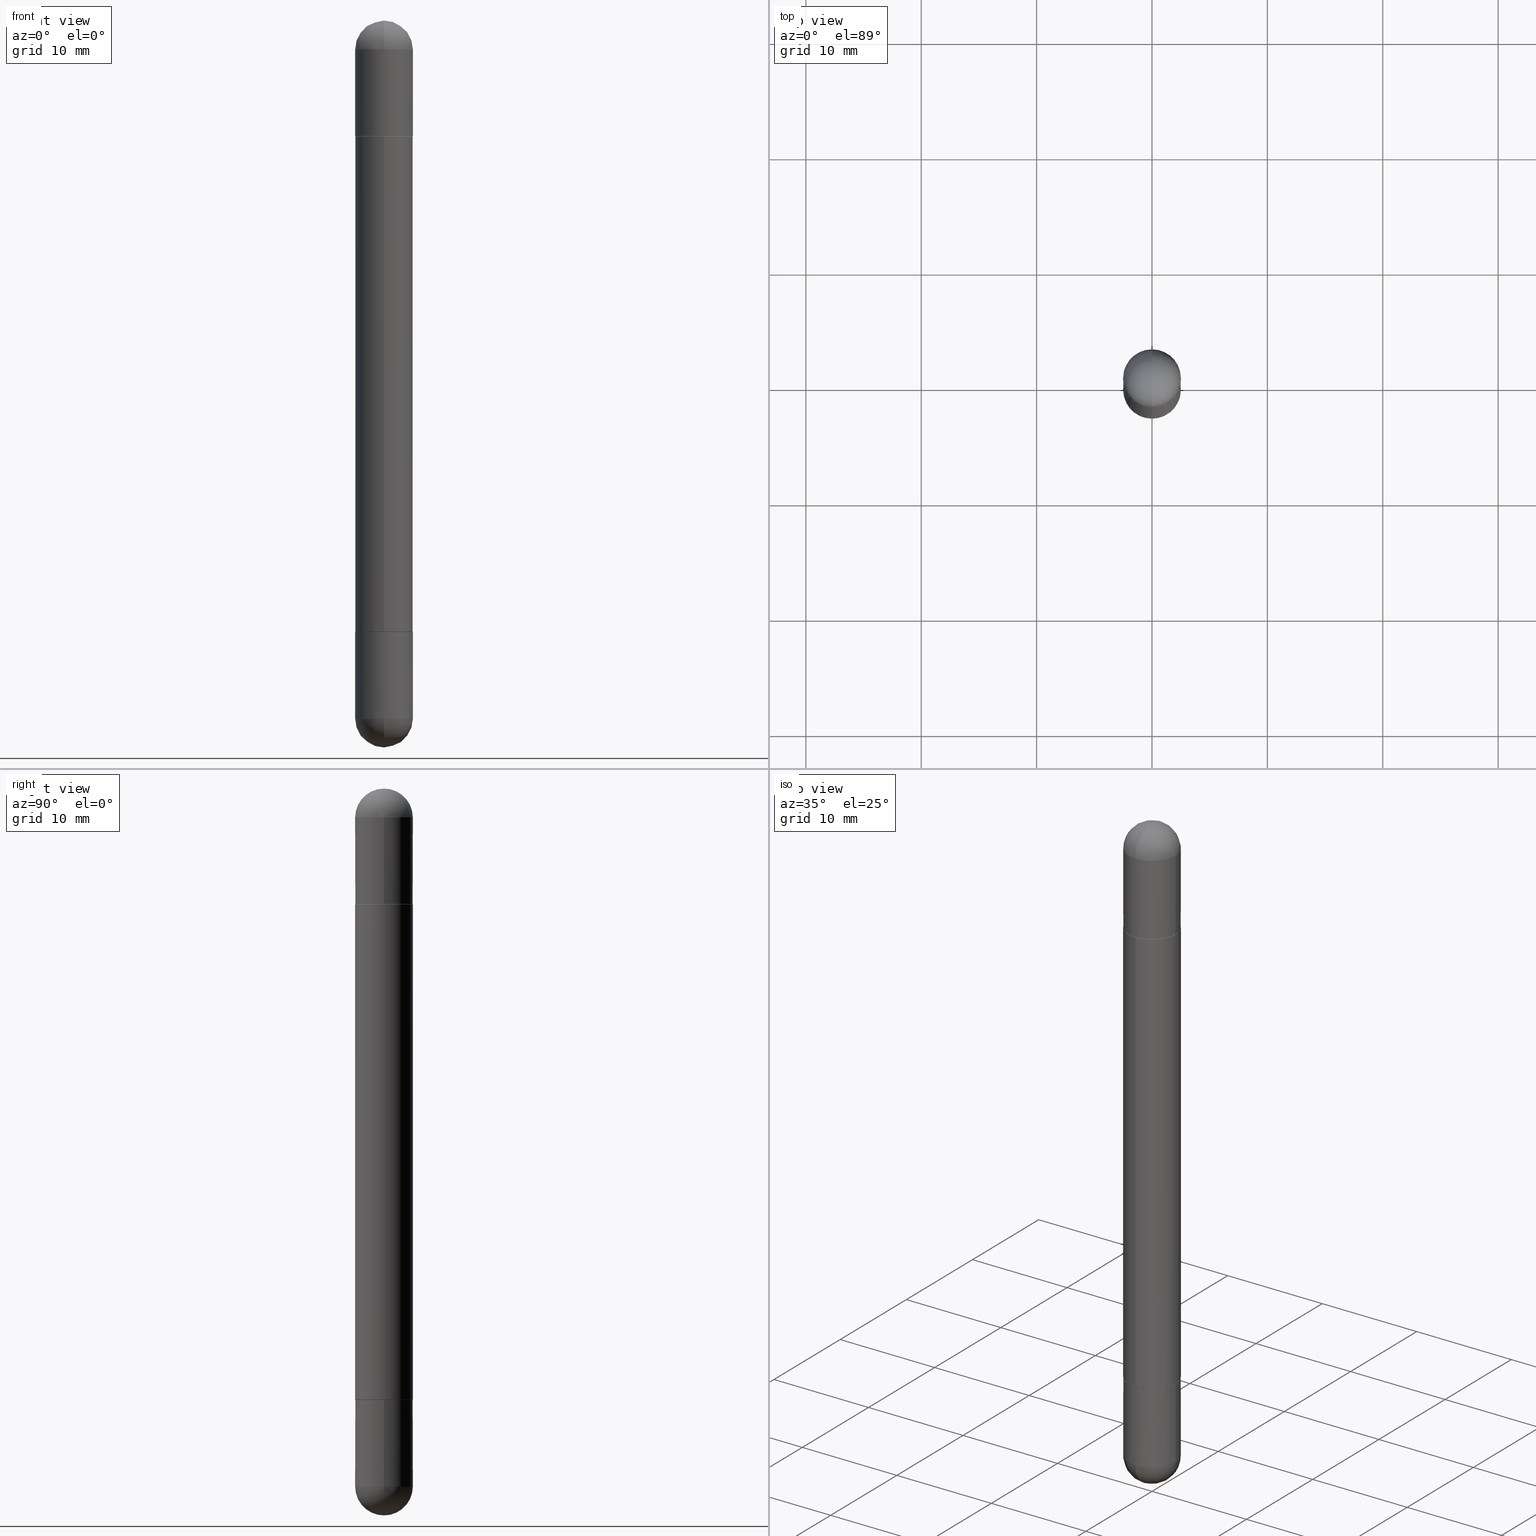
[diagram: canonical four-view strip — front | top / right | iso, engineering-drawing reading convention]
A machine part, canonical four-view strip (front | top / right | iso — engineering-drawing reading convention). The complete STEP part file that produces these views, byte-faithful:
ISO-10303-21;
HEADER;
FILE_DESCRIPTION (( 'STEP AP203' ),
    '1' );
FILE_NAME ('48997.STEP',
    '2024-03-01T12:49:37',
    ( '' ),
    ( '' ),
    'SwSTEP 2.0',
    'SolidWorks 2023',
    '' );
FILE_SCHEMA (( 'CONFIG_CONTROL_DESIGN' ));
ENDSEC;

DATA;
#1 = DIRECTION ( 'NONE',  ( 1.000000000000000000, -6.982962677686273810E-15, 0.000000000000000000 ) ) ;
#2 = DIRECTION ( 'NONE',  ( -6.982962677686265922E-15, -1.000000000000000000, 3.490972175731946571E-15 ) ) ;
#3 = ORIENTED_EDGE ( 'NONE', *, *, #204, .T. ) ;
#4 = AXIS2_PLACEMENT_3D ( 'NONE', #802, #734, #112 ) ;
#5 = LINE ( 'NONE', #442, #557 ) ;
#6 = AXIS2_PLACEMENT_3D ( 'NONE', #487, #69, #309 ) ;
#7 = AXIS2_PLACEMENT_3D ( 'NONE', #519, #580, #702 ) ;
#8 = EDGE_CURVE ( 'NONE', #439, #349, #703, .T. ) ;
#9 = FACE_OUTER_BOUND ( 'NONE', #797, .T. ) ;
#10 = VERTEX_POINT ( 'NONE', #49 ) ;
#11 = PRODUCT_DEFINITION ( 'UNKNOWN', '', #153, #621 ) ;
#12 = PERSON_AND_ORGANIZATION ( #728, #114 ) ;
#13 = SPHERICAL_SURFACE ( 'NONE', #389, 0.09845000000000017626 ) ;
#14 = CARTESIAN_POINT ( 'NONE',  ( 5.103457094730619215E-29, -7.284262541882279801E-15, -0.3936999999999999389 ) ) ;
#15 = ADVANCED_FACE ( 'NONE', ( #302 ), #370, .T. ) ;
#16 = CALENDAR_DATE ( 2024, 1, 3 ) ;
#17 = AXIS2_PLACEMENT_3D ( 'NONE', #585, #144, #512 ) ;
#18 = DIRECTION ( 'NONE',  ( -2.445824352885372142E-29, 3.490972175731946571E-15, -1.000000000000000000 ) ) ;
#19 = AXIS2_PLACEMENT_3D ( 'NONE', #58, #555, #384 ) ;
#20 = VERTEX_POINT ( 'NONE', #109 ) ;
#21 = CARTESIAN_POINT ( 'NONE',  ( 5.103457094730619215E-29, -7.284262541882279801E-15, -0.3936999999999999389 ) ) ;
#22 = SECURITY_CLASSIFICATION_LEVEL ( 'unclassified' ) ;
#23 = CARTESIAN_POINT ( 'NONE',  ( -0.09845000000000000973, 6.754160278806074041E-16, -2.480300000000000171 ) ) ;
#24 = CC_DESIGN_PERSON_AND_ORGANIZATION_ASSIGNMENT ( #89, #503, ( #430 ) ) ;
#25 = FACE_OUTER_BOUND ( 'NONE', #230, .T. ) ;
#26 = VERTEX_POINT ( 'NONE', #550 ) ;
#27 = CARTESIAN_POINT ( 'NONE',  ( 5.103457094730619215E-29, -7.284262541882279801E-15, -0.3936999999999999389 ) ) ;
#28 = ADVANCED_FACE ( 'NONE', ( #603 ), #116, .T. ) ;
#29 = CIRCLE ( 'NONE', #811, 0.09845000000000000973 ) ;
#30 = ORIENTED_EDGE ( 'NONE', *, *, #451, .F. ) ;
#31 = CARTESIAN_POINT ( 'NONE',  ( 5.103457094730619215E-29, -7.284262541882279801E-15, -2.086600000000000232 ) ) ;
#32 = ORIENTED_EDGE ( 'NONE', *, *, #809, .F. ) ;
#33 = CARTESIAN_POINT ( 'NONE',  ( 5.824739876012068780E-29, -8.316184826923546689E-15, -2.381850000000000467 ) ) ;
#34 = ORIENTED_EDGE ( 'NONE', *, *, #700, .F. ) ;
#35 = MANIFOLD_SOLID_BREP ( 'Mirror4[3]', #260 ) ;
#36 = CARTESIAN_POINT ( 'NONE',  ( 6.719857788817732685E-16, 0.09744999999999269524, -0.3936999999999996058 ) ) ;
#37 = LINE ( 'NONE', #657, #295 ) ;
#38 = EDGE_CURVE ( 'NONE', #757, #135, #697, .T. ) ;
#39 = ORIENTED_EDGE ( 'NONE', *, *, #149, .F. ) ;
#40 = ORIENTED_EDGE ( 'NONE', *, *, #336, .T. ) ;
#41 = DIRECTION ( 'NONE',  ( 2.445824352885372423E-29, -3.490972175731946571E-15, 1.000000000000000000 ) ) ;
#42 = DIRECTION ( 'NONE',  ( 4.851104656541418659E-15, 0.7071067811866162955, -0.7071067811864787389 ) ) ;
#43 = ORIENTED_EDGE ( 'NONE', *, *, #709, .T. ) ;
#44 = AXIS2_PLACEMENT_3D ( 'NONE', #271, #394, #277 ) ;
#45 = ORIENTED_EDGE ( 'NONE', *, *, #130, .T. ) ;
#46 = ORIENTED_EDGE ( 'NONE', *, *, #71, .F. ) ;
#47 = DIRECTION ( 'NONE',  ( -6.982962677686266711E-15, -1.000000000000000000, -3.504166230970065993E-15 ) ) ;
#48 = FACE_OUTER_BOUND ( 'NONE', #303, .T. ) ;
#49 = CARTESIAN_POINT ( 'NONE',  ( -6.874726756181635521E-16, -0.09845000000000754536, -0.3947000000000003839 ) ) ;
#50 = ORIENTED_EDGE ( 'NONE', *, *, #749, .F. ) ;
#51 = MANIFOLD_SOLID_BREP ( 'Mirror4[4]', #506 ) ;
#52 = EDGE_LOOP ( 'NONE', ( #505, #364 ) ) ;
#53 = DIRECTION ( 'NONE',  ( 2.445468806185136597E-29, -3.491481338843145583E-15, 1.000000000000000000 ) ) ;
#54 = DIRECTION ( 'NONE',  ( 1.000000000000000000, -6.982962677686266711E-15, 0.000000000000000000 ) ) ;
#55 = ORIENTED_EDGE ( 'NONE', *, *, #552, .T. ) ;
#56 = ADVANCED_FACE ( 'NONE', ( #579 ), #75, .T. ) ;
#57 = ORIENTED_EDGE ( 'NONE', *, *, #240, .T. ) ;
#58 = CARTESIAN_POINT ( 'NONE',  ( 5.493620098098182533E-29, -8.790367195063598563E-15, -2.381850000000000467 ) ) ;
#59 = SPHERICAL_SURFACE ( 'NONE', #692, 0.09845000000000017626 ) ;
#60 = EDGE_CURVE ( 'NONE', #375, #528, #247, .T. ) ;
#61 = ORIENTED_EDGE ( 'NONE', *, *, #261, .F. ) ;
#62 = CIRCLE ( 'NONE', #507, 0.09845000000000000973 ) ;
#63 = EDGE_CURVE ( 'NONE', #10, #118, #183, .T. ) ;
#64 = CIRCLE ( 'NONE', #693, 0.09844999999999999585 ) ;
#65 =( NAMED_UNIT ( * ) PLANE_ANGLE_UNIT ( ) SI_UNIT ( $, .RADIAN. ) );
#66 = LOCAL_TIME ( 7, 49, 37.00000000000000000, #391 ) ;
#67 = CARTESIAN_POINT ( 'NONE',  ( 5.103457094730619215E-29, -7.284262541882279801E-15, -2.086600000000000232 ) ) ;
#68 = DIRECTION ( 'NONE',  ( 4.851104656541418659E-15, 0.7071067811866162955, -0.7071067811864787389 ) ) ;
#69 = DIRECTION ( 'NONE',  ( -2.445824352885372423E-29, 3.490972175731946571E-15, -1.000000000000000000 ) ) ;
#70 = ORIENTED_EDGE ( 'NONE', *, *, #270, .F. ) ;
#71 = EDGE_CURVE ( 'NONE', #757, #466, #739, .T. ) ;
#72 = DIRECTION ( 'NONE',  ( 1.000000000000000000, -6.982962677686266711E-15, 0.000000000000000000 ) ) ;
#73 = DIRECTION ( 'NONE',  ( 1.000000000000000000, -6.982962677686265922E-15, 0.000000000000000000 ) ) ;
#74 = ADVANCED_FACE ( 'NONE', ( #800 ), #558, .T. ) ;
#75 = CONICAL_SURFACE ( 'NONE', #521, 0.09744999999999999496, 0.7853981633975420928 ) ;
#76 = PERSON_AND_ORGANIZATION_ROLE ( 'design_supplier' ) ;
#77 = CIRCLE ( 'NONE', #768, 0.09744999999999999496 ) ;
#78 = DIRECTION ( 'NONE',  ( -2.445468806185136597E-29, 3.491481338843145583E-15, 1.000000000000000000 ) ) ;
#79 = DATE_AND_TIME ( #214, #814 ) ;
#80 = LINE ( 'NONE', #23, #651 ) ;
#81 = ADVANCED_FACE ( 'NONE', ( #239 ), #479, .T. ) ;
#82 = CARTESIAN_POINT ( 'NONE',  ( 5.102715210985907397E-29, -7.285324961630108994E-15, -0.3936999999999999389 ) ) ;
#83 = ORIENTED_EDGE ( 'NONE', *, *, #120, .T. ) ;
#84 = PERSON_AND_ORGANIZATION ( #728, #114 ) ;
#85 = CC_DESIGN_PERSON_AND_ORGANIZATION_ASSIGNMENT ( #84, #766, ( #510 ) ) ;
#86 = CIRCLE ( 'NONE', #720, 0.09845000000000017626 ) ;
#87 = FACE_OUTER_BOUND ( 'NONE', #572, .T. ) ;
#88 = VECTOR ( 'NONE', #299, 39.37007874015748143 ) ;
#89 = PERSON_AND_ORGANIZATION ( #728, #114 ) ;
#90 = PRODUCT_DEFINITION_SHAPE ( 'NONE', 'NONE',  #11 ) ;
#91 = FACE_OUTER_BOUND ( 'NONE', #526, .T. ) ;
#92 = ADVANCED_FACE ( 'NONE', ( #48 ), #323, .T. ) ;
#93 = EDGE_CURVE ( 'NONE', #655, #528, #37, .T. ) ;
#94 = CARTESIAN_POINT ( 'NONE',  ( 5.493620098098182533E-29, -8.790367195063598563E-15, -0.09844999999999987095 ) ) ;
#95 = ORIENTED_EDGE ( 'NONE', *, *, #300, .F. ) ;
#96 = CARTESIAN_POINT ( 'NONE',  ( 5.493620098098182533E-29, -8.790367195063598563E-15, -0.09844999999999987095 ) ) ;
#97 = AXIS2_PLACEMENT_3D ( 'NONE', #416, #598, #54 ) ;
#98 = CARTESIAN_POINT ( 'NONE',  ( 0.000000000000000000, 0.000000000000000000, -2.480300000000000171 ) ) ;
#99 = AXIS2_PLACEMENT_3D ( 'NONE', #388, #499, #2 ) ;
#100 = AXIS2_PLACEMENT_3D ( 'NONE', #293, #159, #235 ) ;
#101 = VERTEX_POINT ( 'NONE', #551 ) ;
#102 = CARTESIAN_POINT ( 'NONE',  ( 5.103457094730619215E-29, -7.284262541882279801E-15, -2.086600000000000232 ) ) ;
#103 = FACE_OUTER_BOUND ( 'NONE', #792, .T. ) ;
#104 = ADVANCED_FACE ( 'NONE', ( #731 ), #670, .T. ) ;
#105 = CARTESIAN_POINT ( 'NONE',  ( -6.874726756181635521E-16, -0.09845000000000754536, -0.3947000000000003839 ) ) ;
#106 = DIRECTION ( 'NONE',  ( 1.000000000000000000, -6.982962677686266711E-15, 4.876176775795935793E-29 ) ) ;
#107 = ORIENTED_EDGE ( 'NONE', *, *, #139, .F. ) ;
#108 = DIRECTION ( 'NONE',  ( -6.982962677686265133E-15, -1.000000000000000000, -5.549716594543950441E-15 ) ) ;
#109 = CARTESIAN_POINT ( 'NONE',  ( 6.959766096770698684E-16, 0.09744999999999269524, -2.086600000000000676 ) ) ;
#110 = DIRECTION ( 'NONE',  ( -6.982962677686266711E-15, -1.000000000000000000, -3.504166230970065993E-15 ) ) ;
#111 = AXIS2_PLACEMENT_3D ( 'NONE', #402, #516, #778 ) ;
#112 = DIRECTION ( 'NONE',  ( 1.000000000000000000, -6.982962677686273810E-15, 0.000000000000000000 ) ) ;
#113 = CIRCLE ( 'NONE', #722, 0.09744999999999999496 ) ;
#114 = ORGANIZATION ( 'UNSPECIFIED', 'UNSPECIFIED', '' ) ;
#115 = CARTESIAN_POINT ( 'NONE',  ( 5.824739876012068780E-29, -8.316184826923546689E-15, -2.381850000000000467 ) ) ;
#116 = CYLINDRICAL_SURFACE ( 'NONE', #218, 0.09845000000000013463 ) ;
#117 = CARTESIAN_POINT ( 'NONE',  ( -6.804897129404755657E-16, -0.09745000000000728080, -2.086600000000000232 ) ) ;
#118 = VERTEX_POINT ( 'NONE', #296 ) ;
#119 = ORIENTED_EDGE ( 'NONE', *, *, #520, .F. ) ;
#120 = EDGE_CURVE ( 'NONE', #528, #375, #704, .T. ) ;
#121 = DIRECTION ( 'NONE',  ( 1.000000000000000000, -6.982962677686265922E-15, 0.000000000000000000 ) ) ;
#122 = APPROVAL ( #217, 'UNSPECIFIED' ) ;
#123 = CARTESIAN_POINT ( 'NONE',  ( 5.103457094730619215E-29, -7.284262541882279801E-15, -0.3936999999999999389 ) ) ;
#124 = DIRECTION ( 'NONE',  ( -2.445468806185136597E-29, 3.491481338843145583E-15, 1.000000000000000000 ) ) ;
#125 = VERTEX_POINT ( 'NONE', #805 ) ;
#126 = AXIS2_PLACEMENT_3D ( 'NONE', #738, #301, #106 ) ;
#127 = AXIS2_PLACEMENT_3D ( 'NONE', #408, #647, #474 ) ;
#128 = DIRECTION ( 'NONE',  ( -6.982962677686265922E-15, -1.000000000000000000, -3.468572871589965081E-15 ) ) ;
#129 = DIRECTION ( 'NONE',  ( 6.982962677686265922E-15, 1.000000000000000000, -2.774858297271973643E-15 ) ) ;
#130 = EDGE_CURVE ( 'NONE', #787, #375, #182, .T. ) ;
#131 = PLANE ( 'NONE',  #221 ) ;
#132 = DIRECTION ( 'NONE',  ( -2.445468806185136597E-29, 3.491481338843145583E-15, 1.000000000000000000 ) ) ;
#133 = DIRECTION ( 'NONE',  ( -1.000000000000000000, 0.000000000000000000, 0.000000000000000000 ) ) ;
#134 = CARTESIAN_POINT ( 'NONE',  ( 5.102715210985907397E-29, -7.285324961630108994E-15, -0.3936999999999999389 ) ) ;
#135 = VERTEX_POINT ( 'NONE', #291 ) ;
#136 = CLOSED_SHELL ( 'NONE', ( #28, #155, #395, #449, #485, #229 ) ) ;
#137 = DATE_AND_TIME ( #694, #209 ) ;
#138 = CIRCLE ( 'NONE', #494, 0.09845000000000000973 ) ;
#139 = EDGE_CURVE ( 'NONE', #125, #787, #413, .T. ) ;
#140 = AXIS2_PLACEMENT_3D ( 'NONE', #196, #562, #128 ) ;
#141 = DIRECTION ( 'NONE',  ( -1.000000000000000000, 6.982962677686265922E-15, 4.883557194083112340E-29 ) ) ;
#142 = ORIENTED_EDGE ( 'NONE', *, *, #193, .T. ) ;
#143 = DATE_AND_TIME ( #772, #630 ) ;
#144 = DIRECTION ( 'NONE',  ( 1.000000000000000000, -6.982962677686265922E-15, -4.883557194083112901E-29 ) ) ;
#145 = ORIENTED_EDGE ( 'NONE', *, *, #8, .F. ) ;
#146 = DIRECTION ( 'NONE',  ( -2.445824352885372423E-29, 3.490972175731946571E-15, 1.000000000000000000 ) ) ;
#147 = EDGE_LOOP ( 'NONE', ( #39, #586, #335, #405, #495 ) ) ;
#148 = CLOSED_SHELL ( 'NONE', ( #174, #224, #312, #517, #104 ) ) ;
#149 = EDGE_CURVE ( 'NONE', #439, #744, #483, .T. ) ;
#150 = CIRCLE ( 'NONE', #556, 0.09844999999999999585 ) ;
#151 = CARTESIAN_POINT ( 'NONE',  ( 5.103457094730619215E-29, -7.284262541882279801E-15, -0.3936999999999999389 ) ) ;
#152 = VECTOR ( 'NONE', #382, 39.37007874015748143 ) ;
#153 = PRODUCT_DEFINITION_FORMATION_WITH_SPECIFIED_SOURCE ( 'ANY', '', #430, .NOT_KNOWN. ) ;
#154 = EDGE_LOOP ( 'NONE', ( #172, #431, #242, #95 ) ) ;
#155 = ADVANCED_FACE ( 'NONE', ( #539 ), #262, .T. ) ;
#156 = APPLICATION_PROTOCOL_DEFINITION ( 'international standard', 'config_control_design', 1994, #326 ) ;
#157 = PLANE ( 'NONE',  #111 ) ;
#158 = DIRECTION ( 'NONE',  ( -6.982962677686265922E-15, -1.000000000000000000, 2.774858297271972065E-15 ) ) ;
#159 = DIRECTION ( 'NONE',  ( 1.000000000000000000, -6.860497997771530774E-15, -4.840798879624142912E-29 ) ) ;
#160 = ORIENTED_EDGE ( 'NONE', *, *, #809, .T. ) ;
#161 = ORIENTED_EDGE ( 'NONE', *, *, #186, .F. ) ;
#162 = CARTESIAN_POINT ( 'NONE',  ( 6.924238959982684768E-16, 0.09744999999999269524, -2.086600000000000676 ) ) ;
#163 = ADVANCED_FACE ( 'NONE', ( #170 ), #801, .T. ) ;
#164 = DIRECTION ( 'NONE',  ( -2.445468806185136597E-29, 3.491481338843145583E-15, -1.000000000000000000 ) ) ;
#165 = AXIS2_PLACEMENT_3D ( 'NONE', #571, #428, #129 ) ;
#166 = AXIS2_PLACEMENT_3D ( 'NONE', #656, #53, #287 ) ;
#167 = DIRECTION ( 'NONE',  ( -2.445824352885372423E-29, 3.490972175731946571E-15, 1.000000000000000000 ) ) ;
#168 = ORIENTED_EDGE ( 'NONE', *, *, #8, .T. ) ;
#169 = CARTESIAN_POINT ( 'NONE',  ( -6.804897129404755657E-16, -0.09745000000000728080, -0.3937000000000002720 ) ) ;
#170 = FACE_OUTER_BOUND ( 'NONE', #592, .T. ) ;
#171 = ORIENTED_EDGE ( 'NONE', *, *, #336, .F. ) ;
#172 = ORIENTED_EDGE ( 'NONE', *, *, #818, .F. ) ;
#173 = ORIENTED_EDGE ( 'NONE', *, *, #469, .F. ) ;
#174 = ADVANCED_FACE ( 'NONE', ( #371 ), #475, .T. ) ;
#175 = ORIENTED_EDGE ( 'NONE', *, *, #773, .T. ) ;
#176 = DIRECTION ( 'NONE',  ( 6.860497997771531562E-15, 1.000000000000000000, 0.000000000000000000 ) ) ;
#177 = DIRECTION ( 'NONE',  ( -2.445468806185136597E-29, 3.491481338843145583E-15, 1.000000000000000000 ) ) ;
#178 = EDGE_LOOP ( 'NONE', ( #711, #222, #758, #179 ) ) ;
#179 = ORIENTED_EDGE ( 'NONE', *, *, #459, .T. ) ;
#180 = CARTESIAN_POINT ( 'NONE',  ( -6.874726756181636507E-16, -0.09845000000000751761, -2.085599999999999898 ) ) ;
#181 = DIRECTION ( 'NONE',  ( 1.000000000000000000, -6.982962677686266711E-15, 0.000000000000000000 ) ) ;
#182 = LINE ( 'NONE', #228, #219 ) ;
#183 = CIRCLE ( 'NONE', #626, 0.09845000000000024565 ) ;
#184 = CIRCLE ( 'NONE', #275, 0.09845000000000017626 ) ;
#185 = ORIENTED_EDGE ( 'NONE', *, *, #93, .T. ) ;
#186 = EDGE_CURVE ( 'NONE', #803, #547, #184, .T. ) ;
#187 = DIRECTION ( 'NONE',  ( -6.982962677686265922E-15, -1.000000000000000000, -3.490972175731946571E-15 ) ) ;
#188 = DIRECTION ( 'NONE',  ( -2.445468806185136877E-29, 3.491481338843145188E-15, 1.000000000000000000 ) ) ;
#189 = EDGE_LOOP ( 'NONE', ( #480, #3, #171, #372 ) ) ;
#190 = DIRECTION ( 'NONE',  ( -1.000000000000000000, 6.982962677686265922E-15, 4.876176775795935793E-29 ) ) ;
#191 = FACE_OUTER_BOUND ( 'NONE', #619, .T. ) ;
#192 = CARTESIAN_POINT ( 'NONE',  ( 5.738586058125595532E-29, -9.128075209003904434E-15, 3.073328992872296367E-16 ) ) ;
#193 = EDGE_CURVE ( 'NONE', #705, #528, #288, .T. ) ;
#194 = DIRECTION ( 'NONE',  ( 6.982962677686265922E-15, 1.000000000000000000, 3.468572871589967054E-15 ) ) ;
#195 = AXIS2_PLACEMENT_3D ( 'NONE', #14, #584, #208 ) ;
#196 = CARTESIAN_POINT ( 'NONE',  ( 5.101011270377733069E-29, -7.280771569706549945E-15, -0.3947000000000000508 ) ) ;
#197 = CARTESIAN_POINT ( 'NONE',  ( 0.09845000000000000973, -8.488227569895042768E-15, -0.09844999999999987095 ) ) ;
#198 = ORIENTED_EDGE ( 'NONE', *, *, #591, .F. ) ;
#199 = EDGE_CURVE ( 'NONE', #658, #348, #62, .T. ) ;
#200 = CARTESIAN_POINT ( 'NONE',  ( 3.033189071230795029E-29, -4.329329143733974331E-15, -1.240150000000000086 ) ) ;
#201 = DIRECTION ( 'NONE',  ( 1.000000000000000000, -6.982962677686273810E-15, 0.000000000000000000 ) ) ;
#202 = APPROVAL_DATE_TIME ( #79, #243 ) ;
#203 = DIRECTION ( 'NONE',  ( 1.000000000000000000, -6.982962677686273810E-15, 0.000000000000000000 ) ) ;
#204 = EDGE_CURVE ( 'NONE', #118, #650, #794, .T. ) ;
#205 = APPLICATION_PROTOCOL_DEFINITION ( 'international standard', 'config_control_design', 1994, #708 ) ;
#206 = AXIS2_PLACEMENT_3D ( 'NONE', #67, #681, #322 ) ;
#207 = CONICAL_SURFACE ( 'NONE', #195, 0.09744999999999999496, 0.7853981633975420928 ) ;
#208 = DIRECTION ( 'NONE',  ( -6.982962677686266711E-15, -1.000000000000000000, -3.504166230970065993E-15 ) ) ;
#209 = LOCAL_TIME ( 7, 49, 37.00000000000000000, #518 ) ;
#210 = ORIENTED_EDGE ( 'NONE', *, *, #459, .F. ) ;
#211 = CC_DESIGN_PERSON_AND_ORGANIZATION_ASSIGNMENT ( #344, #500, ( #153 ) ) ;
#212 = CARTESIAN_POINT ( 'NONE',  ( 6.874726756182700483E-16, 0.09844999999999154427, -0.09844999999999953788 ) ) ;
#213 = ORIENTED_EDGE ( 'NONE', *, *, #93, .F. ) ;
#214 = CALENDAR_DATE ( 2024, 1, 3 ) ;
#215 = CARTESIAN_POINT ( 'NONE',  ( 5.103457094730619215E-29, -7.284262541882279801E-15, -0.3936999999999999389 ) ) ;
#216 = ADVANCED_FACE ( 'NONE', ( #103 ), #59, .T. ) ;
#217 = APPROVAL_STATUS ( 'not_yet_approved' ) ;
#218 = AXIS2_PLACEMENT_3D ( 'NONE', #245, #581, #396 ) ;
#219 = VECTOR ( 'NONE', #360, 39.37007874015748143 ) ;
#220 = LINE ( 'NONE', #695, #455 ) ;
#221 = AXIS2_PLACEMENT_3D ( 'NONE', #123, #304, #187 ) ;
#222 = ORIENTED_EDGE ( 'NONE', *, *, #417, .T. ) ;
#223 = CARTESIAN_POINT ( 'NONE',  ( 6.874726756182700483E-16, 0.09844999999999154427, -0.09844999999999953788 ) ) ;
#224 = ADVANCED_FACE ( 'NONE', ( #383 ), #328, .T. ) ;
#225 = ORIENTED_EDGE ( 'NONE', *, *, #786, .T. ) ;
#226 = FACE_OUTER_BOUND ( 'NONE', #542, .T. ) ;
#227 = ORIENTED_EDGE ( 'NONE', *, *, #784, .F. ) ;
#228 = CARTESIAN_POINT ( 'NONE',  ( 6.754160278806080944E-16, 0.09845000000000013463, -2.480299999999999727 ) ) ;
#229 = ADVANCED_FACE ( 'NONE', ( #191 ), #685, .T. ) ;
#230 = EDGE_LOOP ( 'NONE', ( #729, #55, #816, #471 ) ) ;
#231 = PLANE ( 'NONE',  #569 ) ;
#232 = AXIS2_PLACEMENT_3D ( 'NONE', #774, #397, #404 ) ;
#233 = DIRECTION ( 'NONE',  ( -2.445824352885372423E-29, 3.490972175731946571E-15, -1.000000000000000000 ) ) ;
#234 =( GEOMETRIC_REPRESENTATION_CONTEXT ( 3 ) GLOBAL_UNCERTAINTY_ASSIGNED_CONTEXT ( ( #433 ) ) GLOBAL_UNIT_ASSIGNED_CONTEXT ( ( #252, #65, #255 ) ) REPRESENTATION_CONTEXT ( 'NONE', 'WORKASPACE' ) );
#235 = DIRECTION ( 'NONE',  ( 6.860497997771531562E-15, 1.000000000000000000, 0.000000000000000000 ) ) ;
#236 = DIRECTION ( 'NONE',  ( 1.000000000000000000, -6.982962677686266711E-15, 0.000000000000000000 ) ) ;
#237 = FACE_OUTER_BOUND ( 'NONE', #543, .T. ) ;
#238 = DIRECTION ( 'NONE',  ( -2.445468806185136597E-29, 3.491481338843145583E-15, -1.000000000000000000 ) ) ;
#239 = FACE_OUTER_BOUND ( 'NONE', #147, .T. ) ;
#240 = EDGE_CURVE ( 'NONE', #491, #658, #680, .T. ) ;
#241 = ORIENTED_EDGE ( 'NONE', *, *, #583, .F. ) ;
#242 = ORIENTED_EDGE ( 'NONE', *, *, #618, .F. ) ;
#243 = APPROVAL ( #393, 'UNSPECIFIED' ) ;
#244 = DIRECTION ( 'NONE',  ( 1.000000000000000000, -6.982962677686265922E-15, -4.883557194083112901E-29 ) ) ;
#245 = CARTESIAN_POINT ( 'NONE',  ( 0.000000000000000000, 0.000000000000000000, -2.480300000000000171 ) ) ;
#246 = CARTESIAN_POINT ( 'NONE',  ( 5.493620098098182533E-29, -8.790367195063598563E-15, -0.09844999999999987095 ) ) ;
#247 = CIRCLE ( 'NONE', #421, 0.09845000000000024565 ) ;
#248 = AXIS2_PLACEMENT_3D ( 'NONE', #305, #354, #808 ) ;
#249 = AXIS2_PLACEMENT_3D ( 'NONE', #31, #527, #788 ) ;
#250 = ORIENTED_EDGE ( 'NONE', *, *, #149, .T. ) ;
#251 = VERTEX_POINT ( 'NONE', #376 ) ;
#252 =( CONVERSION_BASED_UNIT ( 'INCH', #308 ) LENGTH_UNIT ( ) NAMED_UNIT ( #307 ) );
#253 = DIRECTION ( 'NONE',  ( 2.445824352885372423E-29, -3.490972175731946571E-15, 1.000000000000000000 ) ) ;
#254 = ADVANCED_FACE ( 'NONE', ( #9 ), #266, .T. ) ;
#255 =( NAMED_UNIT ( * ) SI_UNIT ( $, .STERADIAN. ) SOLID_ANGLE_UNIT ( ) );
#256 = ORIENTED_EDGE ( 'NONE', *, *, #130, .F. ) ;
#257 = CARTESIAN_POINT ( 'NONE',  ( 5.102715210985907397E-29, -7.285324961630108994E-15, -2.086600000000000232 ) ) ;
#258 = DIRECTION ( 'NONE',  ( -2.445468806185136597E-29, 3.491481338843145583E-15, 1.000000000000000000 ) ) ;
#259 = EDGE_LOOP ( 'NONE', ( #769, #362 ) ) ;
#260 = CLOSED_SHELL ( 'NONE', ( #15, #752, #74, #676, #81 ) ) ;
#261 = EDGE_CURVE ( 'NONE', #658, #544, #563, .T. ) ;
#262 = CONICAL_SURFACE ( 'NONE', #795, 0.09744999999999999496, 0.7853981633975420928 ) ;
#263 = EDGE_LOOP ( 'NONE', ( #640, #678 ) ) ;
#264 = CIRCLE ( 'NONE', #524, 0.09845000000000017626 ) ;
#265 = SPHERICAL_SURFACE ( 'NONE', #378, 0.09845000000000017626 ) ;
#266 = CYLINDRICAL_SURFACE ( 'NONE', #467, 0.09845000000000013463 ) ;
#267 = ORIENTED_EDGE ( 'NONE', *, *, #63, .T. ) ;
#268 = COORDINATED_UNIVERSAL_TIME_OFFSET ( 5, 0, .BEHIND. ) ;
#269 = DIRECTION ( 'NONE',  ( -1.000000000000000000, 6.982962677686265922E-15, -4.883557194083112901E-29 ) ) ;
#270 = EDGE_CURVE ( 'NONE', #298, #544, #377, .T. ) ;
#271 = CARTESIAN_POINT ( 'NONE',  ( 5.101011270377733069E-29, -7.280771569706549945E-15, -0.3947000000000000508 ) ) ;
#272 = ORIENTED_EDGE ( 'NONE', *, *, #715, .T. ) ;
#273 = AXIS2_PLACEMENT_3D ( 'NONE', #134, #315, #504 ) ;
#274 = DATE_AND_TIME ( #636, #66 ) ;
#275 = AXIS2_PLACEMENT_3D ( 'NONE', #590, #595, #605 ) ;
#276 = CIRCLE ( 'NONE', #390, 0.09744999999999999496 ) ;
#277 = DIRECTION ( 'NONE',  ( -6.982962677686265922E-15, -1.000000000000000000, -3.468572871589965081E-15 ) ) ;
#278 = ADVANCED_FACE ( 'NONE', ( #374 ), #438, .F. ) ;
#279 = SPHERICAL_SURFACE ( 'NONE', #17, 0.09845000000000017626 ) ;
#280 = APPROVAL_STATUS ( 'not_yet_approved' ) ;
#281 = PLANE ( 'NONE',  #7 ) ;
#282 = AXIS2_PLACEMENT_3D ( 'NONE', #493, #253, #677 ) ;
#283 = CARTESIAN_POINT ( 'NONE',  ( 5.102715210985907397E-29, -7.285324961630108994E-15, -0.3936999999999999389 ) ) ;
#284 = AXIS2_PLACEMENT_3D ( 'NONE', #96, #463, #176 ) ;
#285 = CC_DESIGN_APPROVAL ( #646, ( #11 ) ) ;
#286 = ORIENTED_EDGE ( 'NONE', *, *, #492, .F. ) ;
#287 = DIRECTION ( 'NONE',  ( 1.000000000000000000, -6.982962677686273810E-15, 0.000000000000000000 ) ) ;
#288 = LINE ( 'NONE', #117, #482 ) ;
#289 = VERTEX_POINT ( 'NONE', #501 ) ;
#290 = FACE_OUTER_BOUND ( 'NONE', #306, .T. ) ;
#291 = CARTESIAN_POINT ( 'NONE',  ( 0.09844999999999999585, -7.972797637248321554E-15, -0.3936999999999999389 ) ) ;
#292 = ORIENTED_EDGE ( 'NONE', *, *, #60, .T. ) ;
#293 = CARTESIAN_POINT ( 'NONE',  ( 5.493620098098182533E-29, -8.790367195063598563E-15, -0.09844999999999987095 ) ) ;
#294 = DIRECTION ( 'NONE',  ( 1.000000000000000000, -6.982962677686273810E-15, 0.000000000000000000 ) ) ;
#295 = VECTOR ( 'NONE', #470, 39.37007874015748143 ) ;
#296 = CARTESIAN_POINT ( 'NONE',  ( 6.754160278806600606E-16, 0.09844999999999295981, -0.3946999999999996622 ) ) ;
#297 = AXIS2_PLACEMENT_3D ( 'NONE', #151, #468, #785 ) ;
#298 = VERTEX_POINT ( 'NONE', #385 ) ;
#299 = DIRECTION ( 'NONE',  ( -2.445824352885372423E-29, 3.490972175731946571E-15, -1.000000000000000000 ) ) ;
#300 = EDGE_CURVE ( 'NONE', #348, #573, #138, .T. ) ;
#301 = DIRECTION ( 'NONE',  ( -2.445468806185136597E-29, 3.491481338843145583E-15, 1.000000000000000000 ) ) ;
#302 = FACE_OUTER_BOUND ( 'NONE', #529, .T. ) ;
#303 = EDGE_LOOP ( 'NONE', ( #107, #34, #652, #644 ) ) ;
#304 = DIRECTION ( 'NONE',  ( -2.445824352885372142E-29, 3.490972175731946571E-15, -1.000000000000000000 ) ) ;
#305 = CARTESIAN_POINT ( 'NONE',  ( 5.101011270377733069E-29, -7.280771569706549945E-15, -2.085600000000000342 ) ) ;
#306 = EDGE_LOOP ( 'NONE', ( #286, #45, #292, #213 ) ) ;
#307 = DIMENSIONAL_EXPONENTS ( 1.000000000000000000, 0.000000000000000000, 0.000000000000000000, 0.000000000000000000, 0.000000000000000000, 0.000000000000000000, 0.000000000000000000 ) ;
#308 = LENGTH_MEASURE_WITH_UNIT ( LENGTH_MEASURE( 0.02539999999999999897 ), #673 );
#309 = DIRECTION ( 'NONE',  ( -6.982962677686265133E-15, -1.000000000000000000, -5.549716594543950441E-15 ) ) ;
#310 = CLOSED_SHELL ( 'NONE', ( #363, #608, #56, #799, #92, #254, #732, #278 ) ) ;
#311 = CIRCLE ( 'NONE', #273, 0.09844999999999999585 ) ;
#312 = ADVANCED_FACE ( 'NONE', ( #443 ), #13, .T. ) ;
#313 = CIRCLE ( 'NONE', #783, 0.09845000000000000973 ) ;
#314 = ORIENTED_EDGE ( 'NONE', *, *, #186, .T. ) ;
#315 = DIRECTION ( 'NONE',  ( 2.445468806185136597E-29, -3.491481338843145583E-15, 1.000000000000000000 ) ) ;
#316 = ORIENTED_EDGE ( 'NONE', *, *, #520, .T. ) ;
#317 = ORIENTED_EDGE ( 'NONE', *, *, #641, .F. ) ;
#318 = LINE ( 'NONE', #753, #152 ) ;
#319 = DIRECTION ( 'NONE',  ( -2.445824352885372423E-29, 3.490972175731946571E-15, -1.000000000000000000 ) ) ;
#320 = EDGE_CURVE ( 'NONE', #655, #787, #587, .T. ) ;
#321 = FACE_OUTER_BOUND ( 'NONE', #532, .T. ) ;
#322 = DIRECTION ( 'NONE',  ( -6.982962677686266711E-15, -1.000000000000000000, 2.803332984776052637E-15 ) ) ;
#323 = CONICAL_SURFACE ( 'NONE', #398, 0.09744999999999999496, 0.7853981633975420928 ) ;
#324 = CIRCLE ( 'NONE', #400, 0.09744999999999999496 ) ;
#325 = APPROVAL_DATE_TIME ( #448, #646 ) ;
#326 = APPLICATION_CONTEXT ( 'configuration controlled 3d designs of mechanical parts and assemblies' ) ;
#327 = EDGE_CURVE ( 'NONE', #544, #298, #150, .T. ) ;
#328 = SPHERICAL_SURFACE ( 'NONE', #165, 0.09845000000000017626 ) ;
#329 = ORIENTED_EDGE ( 'NONE', *, *, #618, .T. ) ;
#330 = MANIFOLD_SOLID_BREP ( 'Body-Move/Copy2[1]', #148 ) ;
#331 = DIRECTION ( 'NONE',  ( -6.982962677686266711E-15, -1.000000000000000000, -3.504166230970065993E-15 ) ) ;
#332 = MANIFOLD_SOLID_BREP ( 'Mirror4[1]', #136 ) ;
#333 = DIRECTION ( 'NONE',  ( 2.445468806185136597E-29, -3.491481338843145583E-15, 1.000000000000000000 ) ) ;
#334 = CARTESIAN_POINT ( 'NONE',  ( 5.824739876012068780E-29, -8.316184826923546689E-15, -0.09844999999999987095 ) ) ;
#336 = EDGE_CURVE ( 'NONE', #343, #650, #615, .T. ) ;
#335 = ORIENTED_EDGE ( 'NONE', *, *, #813, .F. ) ;
#337 = AXIS2_PLACEMENT_3D ( 'NONE', #710, #146, #577 ) ;
#338 = DIRECTION ( 'NONE',  ( -2.445468806185136877E-29, 3.491481338843145188E-15, -1.000000000000000000 ) ) ;
#339 = PERSON_AND_ORGANIZATION ( #728, #114 ) ;
#340 = AXIS2_PLACEMENT_3D ( 'NONE', #115, #369, #460 ) ;
#341 = MANIFOLD_SOLID_BREP ( 'Combine1', #310 ) ;
#342 = CARTESIAN_POINT ( 'NONE',  ( -6.995293233557624958E-16, -0.09845000000000865559, -2.381850000000000023 ) ) ;
#343 = VERTEX_POINT ( 'NONE', #616 ) ;
#344 = PERSON_AND_ORGANIZATION ( #728, #114 ) ;
#345 = CARTESIAN_POINT ( 'NONE',  ( -0.09844999999999999585, -7.125338866396220043E-15, -0.3936999999999999389 ) ) ;
#346 = EDGE_CURVE ( 'NONE', #20, #705, #422, .T. ) ;
#347 = VERTEX_POINT ( 'NONE', #197 ) ;
#348 = VERTEX_POINT ( 'NONE', #566 ) ;
#349 = VERTEX_POINT ( 'NONE', #687 ) ;
#350 = AXIS2_PLACEMENT_3D ( 'NONE', #246, #419, #546 ) ;
#351 = AXIS2_PLACEMENT_3D ( 'NONE', #283, #780, #444 ) ;
#352 = CARTESIAN_POINT ( 'NONE',  ( -0.09845000000000000973, -7.101225570921009731E-15, -2.381850000000000467 ) ) ;
#353 = EDGE_CURVE ( 'NONE', #454, #135, #311, .T. ) ;
#354 = DIRECTION ( 'NONE',  ( -2.445824352885372423E-29, 3.490972175731946571E-15, 1.000000000000000000 ) ) ;
#355 = EDGE_CURVE ( 'NONE', #514, #744, #410, .T. ) ;
#356 = ORIENTED_EDGE ( 'NONE', *, *, #386, .F. ) ;
#357 = DIRECTION ( 'NONE',  ( -2.445824352885372423E-29, 3.490972175731946571E-15, -1.000000000000000000 ) ) ;
#358 = ORIENTED_EDGE ( 'NONE', *, *, #346, .T. ) ;
#359 = DIRECTION ( 'NONE',  ( -2.445824352885372423E-29, 3.490972175731946571E-15, 1.000000000000000000 ) ) ;
#360 = DIRECTION ( 'NONE',  ( -2.445824352885372423E-29, 3.490972175731946571E-15, -1.000000000000000000 ) ) ;
#361 = ORIENTED_EDGE ( 'NONE', *, *, #417, .F. ) ;
#362 = ORIENTED_EDGE ( 'NONE', *, *, #502, .F. ) ;
#363 = ADVANCED_FACE ( 'NONE', ( #25 ), #600, .T. ) ;
#364 = ORIENTED_EDGE ( 'NONE', *, *, #270, .T. ) ;
#365 = DIRECTION ( 'NONE',  ( -1.000000000000000000, 6.982962677686265922E-15, 4.876176775795935793E-29 ) ) ;
#366 = CARTESIAN_POINT ( 'NONE',  ( 0.000000000000000000, 0.000000000000000000, 0.000000000000000000 ) ) ;
#367 = CIRCLE ( 'NONE', #537, 0.09845000000000013463 ) ;
#368 = CC_DESIGN_APPROVAL ( #122, ( #153 ) ) ;
#369 = DIRECTION ( 'NONE',  ( -2.445468806185136597E-29, 3.491481338843145583E-15, 1.000000000000000000 ) ) ;
#370 = CYLINDRICAL_SURFACE ( 'NONE', #578, 0.09845000000000000973 ) ;
#371 = FACE_OUTER_BOUND ( 'NONE', #682, .T. ) ;
#372 = ORIENTED_EDGE ( 'NONE', *, *, #715, .F. ) ;
#373 = CARTESIAN_POINT ( 'NONE',  ( 0.09845000000000000973, -8.488227569895042768E-15, -0.09844999999999987095 ) ) ;
#374 = FACE_OUTER_BOUND ( 'NONE', #263, .T. ) ;
#375 = VERTEX_POINT ( 'NONE', #767 ) ;
#376 = CARTESIAN_POINT ( 'NONE',  ( -6.804897129404755657E-16, -0.09745000000000728080, -0.3937000000000002720 ) ) ;
#377 = CIRCLE ( 'NONE', #536, 0.09844999999999999585 ) ;
#378 = AXIS2_PLACEMENT_3D ( 'NONE', #620, #244, #387 ) ;
#379 = CIRCLE ( 'NONE', #284, 0.09845000000000017626 ) ;
#380 = ORIENTED_EDGE ( 'NONE', *, *, #709, .F. ) ;
#381 = APPROVAL_PERSON_ORGANIZATION ( #582, #243, #570 ) ;
#382 = DIRECTION ( 'NONE',  ( -2.445468806185136877E-29, 3.491481338843145188E-15, -1.000000000000000000 ) ) ;
#383 = FACE_OUTER_BOUND ( 'NONE', #154, .T. ) ;
#384 = DIRECTION ( 'NONE',  ( 6.982962677686265922E-15, 1.000000000000000000, 0.000000000000000000 ) ) ;
#385 = CARTESIAN_POINT ( 'NONE',  ( -0.09844999999999999585, -7.101225570921008942E-15, -2.086600000000000232 ) ) ;
#386 = EDGE_CURVE ( 'NONE', #573, #298, #220, .T. ) ;
#387 = DIRECTION ( 'NONE',  ( 6.982962677686265922E-15, 1.000000000000000000, 3.468572871589967054E-15 ) ) ;
#388 = CARTESIAN_POINT ( 'NONE',  ( 5.103457094730619215E-29, -7.284262541882279801E-15, -2.086600000000000232 ) ) ;
#389 = AXIS2_PLACEMENT_3D ( 'NONE', #624, #269, #761 ) ;
#390 = AXIS2_PLACEMENT_3D ( 'NONE', #669, #41, #420 ) ;
#391 = COORDINATED_UNIVERSAL_TIME_OFFSET ( 5, 0, .BEHIND. ) ;
#392 = CARTESIAN_POINT ( 'NONE',  ( 5.824739876012068780E-29, -8.316184826923546689E-15, -0.09844999999999987095 ) ) ;
#393 = APPROVAL_STATUS ( 'not_yet_approved' ) ;
#394 = DIRECTION ( 'NONE',  ( 2.445824352885372423E-29, -3.490972175731946571E-15, 1.000000000000000000 ) ) ;
#395 = ADVANCED_FACE ( 'NONE', ( #458 ), #157, .F. ) ;
#396 = DIRECTION ( 'NONE',  ( -6.982962677686265133E-15, -1.000000000000000000, -5.549716594543950441E-15 ) ) ;
#397 = DIRECTION ( 'NONE',  ( 2.445468806185136597E-29, -3.491481338843145583E-15, 1.000000000000000000 ) ) ;
#398 = AXIS2_PLACEMENT_3D ( 'NONE', #743, #233, #110 ) ;
#399 = PERSON_AND_ORGANIZATION ( #728, #114 ) ;
#400 = AXIS2_PLACEMENT_3D ( 'NONE', #661, #730, #47 ) ;
#401 = APPROVAL_PERSON_ORGANIZATION ( #12, #646, #515 ) ;
#402 = CARTESIAN_POINT ( 'NONE',  ( 0.000000000000000000, 0.000000000000000000, -1.240150000000000086 ) ) ;
#403 = CARTESIAN_POINT ( 'NONE',  ( 0.000000000000000000, 0.000000000000000000, 0.000000000000000000 ) ) ;
#404 = DIRECTION ( 'NONE',  ( 1.000000000000000000, -6.982962677686273810E-15, 0.000000000000000000 ) ) ;
#405 = ORIENTED_EDGE ( 'NONE', *, *, #749, .T. ) ;
#406 = CARTESIAN_POINT ( 'NONE',  ( 5.101011270377733069E-29, -7.280771569706549945E-15, -0.3947000000000000508 ) ) ;
#407 = EDGE_CURVE ( 'NONE', #466, #289, #446, .T. ) ;
#408 = CARTESIAN_POINT ( 'NONE',  ( 5.824739876012068780E-29, -8.316184826923546689E-15, -0.09844999999999987095 ) ) ;
#409 = CARTESIAN_POINT ( 'NONE',  ( 5.103457094730619215E-29, -7.284262541882279801E-15, -0.3936999999999999389 ) ) ;
#410 = CIRCLE ( 'NONE', #351, 0.09844999999999999585 ) ;
#411 = CARTESIAN_POINT ( 'NONE',  ( 5.493620098098182533E-29, -8.790367195063598563E-15, -2.381850000000000467 ) ) ;
#412 = CIRCLE ( 'NONE', #127, 0.09845000000000000973 ) ;
#413 = LINE ( 'NONE', #423, #810 ) ;
#414 = ORIENTED_EDGE ( 'NONE', *, *, #71, .T. ) ;
#415 = CARTESIAN_POINT ( 'NONE',  ( -6.804897129404755657E-16, -0.09745000000000728080, -0.3937000000000002720 ) ) ;
#416 = CARTESIAN_POINT ( 'NONE',  ( 0.000000000000000000, 0.000000000000000000, -2.480300000000000171 ) ) ;
#417 = EDGE_CURVE ( 'NONE', #101, #466, #86, .T. ) ;
#418 = LINE ( 'NONE', #162, #435 ) ;
#419 = DIRECTION ( 'NONE',  ( 1.000000000000000000, -6.982962677686265922E-15, -4.883557194083112901E-29 ) ) ;
#420 = DIRECTION ( 'NONE',  ( -6.982962677686266711E-15, -1.000000000000000000, -3.504166230970065993E-15 ) ) ;
#421 = AXIS2_PLACEMENT_3D ( 'NONE', #714, #167, #158 ) ;
#422 = CIRCLE ( 'NONE', #206, 0.09744999999999999496 ) ;
#423 = CARTESIAN_POINT ( 'NONE',  ( 6.685555298828866736E-16, 0.09744999999999269524, -0.3936999999999996058 ) ) ;
#424 = AXIS2_PLACEMENT_3D ( 'NONE', #432, #679, #1 ) ;
#425 = ORIENTED_EDGE ( 'NONE', *, *, #746, .T. ) ;
#426 = ORIENTED_EDGE ( 'NONE', *, *, #60, .F. ) ;
#427 = CARTESIAN_POINT ( 'NONE',  ( 6.874726756182639346E-16, 0.09844999999999271001, -0.3936999999999996613 ) ) ;
#428 = DIRECTION ( 'NONE',  ( -1.000000000000000000, 6.982962677686265922E-15, -4.883557194083112901E-29 ) ) ;
#429 = CARTESIAN_POINT ( 'NONE',  ( 5.102715210985907397E-29, -7.285324961630108994E-15, -0.3936999999999999389 ) ) ;
#430 = PRODUCT ( '48997', '48997', '', ( #701 ) ) ;
#431 = ORIENTED_EDGE ( 'NONE', *, *, #648, .T. ) ;
#432 = CARTESIAN_POINT ( 'NONE',  ( 5.824739876012068780E-29, -8.316184826923546689E-15, -0.09844999999999987095 ) ) ;
#433 = UNCERTAINTY_MEASURE_WITH_UNIT (LENGTH_MEASURE( 1.000000000000000082E-05 ), #252, 'distance_accuracy_value', 'NONE');
#434 = CARTESIAN_POINT ( 'NONE',  ( 0.000000000000000000, 0.000000000000000000, -2.480300000000000171 ) ) ;
#435 = VECTOR ( 'NONE', #607, 39.37007874015748143 ) ;
#436 = CC_DESIGN_SECURITY_CLASSIFICATION ( #510, ( #153 ) ) ;
#437 = DIRECTION ( 'NONE',  ( -2.445468806185136597E-29, 3.491481338843145583E-15, -1.000000000000000000 ) ) ;
#438 = PLANE ( 'NONE',  #99 ) ;
#439 = VERTEX_POINT ( 'NONE', #643 ) ;
#440 = ADVANCED_FACE ( 'NONE', ( #637 ), #279, .T. ) ;
#441 = ORIENTED_EDGE ( 'NONE', *, *, #700, .T. ) ;
#442 = CARTESIAN_POINT ( 'NONE',  ( -6.804897129404755657E-16, -0.09745000000000728080, -0.3937000000000002720 ) ) ;
#443 = FACE_OUTER_BOUND ( 'NONE', #631, .T. ) ;
#444 = DIRECTION ( 'NONE',  ( 1.000000000000000000, -6.982962677686265922E-15, 0.000000000000000000 ) ) ;
#445 = DIRECTION ( 'NONE',  ( 2.445824352885372423E-29, -3.490972175731946571E-15, 1.000000000000000000 ) ) ;
#446 = CIRCLE ( 'NONE', #232, 0.09845000000000000973 ) ;
#447 = AXIS2_PLACEMENT_3D ( 'NONE', #429, #760, #489 ) ;
#448 = DATE_AND_TIME ( #16, #725 ) ;
#449 = ADVANCED_FACE ( 'NONE', ( #91 ), #450, .F. ) ;
#450 = PLANE ( 'NONE',  #567 ) ;
#451 = EDGE_CURVE ( 'NONE', #564, #565, #77, .T. ) ;
#452 = DIRECTION ( 'NONE',  ( 1.000000000000000000, -6.982962677686265922E-15, 0.000000000000000000 ) ) ;
#453 = CARTESIAN_POINT ( 'NONE',  ( 0.09844999999999999585, -7.972797637248321554E-15, -0.3936999999999999389 ) ) ;
#454 = VERTEX_POINT ( 'NONE', #345 ) ;
#455 = VECTOR ( 'NONE', #645, 39.37007874015748143 ) ;
#456 = PERSON_AND_ORGANIZATION ( #728, #114 ) ;
#457 = AXIS2_PLACEMENT_3D ( 'NONE', #737, #357, #108 ) ;
#458 = FACE_OUTER_BOUND ( 'NONE', #477, .T. ) ;
#459 = EDGE_CURVE ( 'NONE', #289, #26, #29, .T. ) ;
#460 = DIRECTION ( 'NONE',  ( 1.000000000000000000, -6.982962677686273810E-15, 0.000000000000000000 ) ) ;
#461 = DIRECTION ( 'NONE',  ( -2.445824352885372423E-29, 3.490972175731946571E-15, -1.000000000000000000 ) ) ;
#462 = ORIENTED_EDGE ( 'NONE', *, *, #648, .F. ) ;
#463 = DIRECTION ( 'NONE',  ( 1.000000000000000000, -6.860497997771530774E-15, -4.840798879624142912E-29 ) ) ;
#464 = CARTESIAN_POINT ( 'NONE',  ( 6.754160278806080944E-16, 0.09845000000000013463, -2.480299999999999727 ) ) ;
#465 = DIRECTION ( 'NONE',  ( -6.982962677686266711E-15, -1.000000000000000000, -3.504166230970065993E-15 ) ) ;
#466 = VERTEX_POINT ( 'NONE', #212 ) ;
#467 = AXIS2_PLACEMENT_3D ( 'NONE', #434, #319, #627 ) ;
#468 = DIRECTION ( 'NONE',  ( 2.445824352885372423E-29, -3.490972175731946571E-15, 1.000000000000000000 ) ) ;
#469 = EDGE_CURVE ( 'NONE', #289, #454, #80, .T. ) ;
#470 = DIRECTION ( 'NONE',  ( -2.445824352885372423E-29, 3.490972175731946571E-15, -1.000000000000000000 ) ) ;
#471 = ORIENTED_EDGE ( 'NONE', *, *, #193, .F. ) ;
#472 = ORIENTED_EDGE ( 'NONE', *, *, #746, .F. ) ;
#473 = ORIENTED_EDGE ( 'NONE', *, *, #492, .T. ) ;
#474 = DIRECTION ( 'NONE',  ( 1.000000000000000000, -6.982962677686273810E-15, 0.000000000000000000 ) ) ;
#475 = CYLINDRICAL_SURFACE ( 'NONE', #781, 0.09845000000000000973 ) ;
#476 = ORIENTED_EDGE ( 'NONE', *, *, #353, .T. ) ;
#477 = EDGE_LOOP ( 'NONE', ( #40, #488 ) ) ;
#478 = DIRECTION ( 'NONE',  ( -1.000000000000000000, 7.105427357601001070E-15, -4.926315508542082329E-29 ) ) ;
#479 = CYLINDRICAL_SURFACE ( 'NONE', #97, 0.09845000000000000973 ) ;
#480 = ORIENTED_EDGE ( 'NONE', *, *, #759, .F. ) ;
#481 = PLANE ( 'NONE',  #601 ) ;
#482 = VECTOR ( 'NONE', #609, 39.37007874015748143 ) ;
#483 = LINE ( 'NONE', #534, #667 ) ;
#484 = CIRCLE ( 'NONE', #166, 0.09845000000000000973 ) ;
#485 = ADVANCED_FACE ( 'NONE', ( #87 ), #207, .T. ) ;
#486 = CARTESIAN_POINT ( 'NONE',  ( 6.685555298828866736E-16, 0.09744999999999269524, -0.3936999999999996058 ) ) ;
#487 = CARTESIAN_POINT ( 'NONE',  ( 0.000000000000000000, 0.000000000000000000, -2.480300000000000171 ) ) ;
#488 = ORIENTED_EDGE ( 'NONE', *, *, #784, .T. ) ;
#489 = DIRECTION ( 'NONE',  ( 1.000000000000000000, -6.982962677686265922E-15, 0.000000000000000000 ) ) ;
#490 = DIRECTION ( 'NONE',  ( -1.000000000000000000, 0.000000000000000000, 0.000000000000000000 ) ) ;
#491 = VERTEX_POINT ( 'NONE', #342 ) ;
#492 = EDGE_CURVE ( 'NONE', #787, #655, #668, .T. ) ;
#493 = CARTESIAN_POINT ( 'NONE',  ( 5.101011270377733069E-29, -7.280771569706549945E-15, -0.3947000000000000508 ) ) ;
#494 = AXIS2_PLACEMENT_3D ( 'NONE', #613, #258, #674 ) ;
#495 = ORIENTED_EDGE ( 'NONE', *, *, #355, .T. ) ;
#496 = CIRCLE ( 'NONE', #140, 0.09845000000000024565 ) ;
#497 = ORIENTED_EDGE ( 'NONE', *, *, #139, .T. ) ;
#498 = FACE_OUTER_BOUND ( 'NONE', #531, .T. ) ;
#499 = DIRECTION ( 'NONE',  ( -2.445824352885372142E-29, 3.490972175731946571E-15, 1.000000000000000000 ) ) ;
#500 = PERSON_AND_ORGANIZATION_ROLE ( 'creator' ) ;
#501 = CARTESIAN_POINT ( 'NONE',  ( -0.09845000000000000973, -7.125338866396221621E-15, -0.09844999999999987095 ) ) ;
#502 = EDGE_CURVE ( 'NONE', #744, #514, #64, .T. ) ;
#503 = PERSON_AND_ORGANIZATION_ROLE ( 'design_owner' ) ;
#504 = DIRECTION ( 'NONE',  ( 1.000000000000000000, -6.982962677686265922E-15, 0.000000000000000000 ) ) ;
#505 = ORIENTED_EDGE ( 'NONE', *, *, #327, .T. ) ;
#506 = CLOSED_SHELL ( 'NONE', ( #163, #216, #440, #762, #736 ) ) ;
#507 = AXIS2_PLACEMENT_3D ( 'NONE', #33, #530, #789 ) ;
#508 = CIRCLE ( 'NONE', #19, 0.09845000000000017626 ) ;
#509 = ORIENTED_EDGE ( 'NONE', *, *, #353, .F. ) ;
#510 = SECURITY_CLASSIFICATION ( '', '', #22 ) ;
#511 = COORDINATED_UNIVERSAL_TIME_OFFSET ( 5, 0, .BEHIND. ) ;
#512 = DIRECTION ( 'NONE',  ( 6.982962677686265922E-15, 1.000000000000000000, 3.468572871589967054E-15 ) ) ;
#513 = ORIENTED_EDGE ( 'NONE', *, *, #813, .T. ) ;
#514 = VERTEX_POINT ( 'NONE', #453 ) ;
#515 = APPROVAL_ROLE ( '' ) ;
#516 = DIRECTION ( 'NONE',  ( 0.000000000000000000, 0.000000000000000000, 1.000000000000000000 ) ) ;
#517 = ADVANCED_FACE ( 'NONE', ( #699 ), #281, .F. ) ;
#518 = COORDINATED_UNIVERSAL_TIME_OFFSET ( 5, 0, .BEHIND. ) ;
#519 = CARTESIAN_POINT ( 'NONE',  ( 6.874726756182639346E-16, 0.09844999999999271001, -2.086600000000000676 ) ) ;
#520 = EDGE_CURVE ( 'NONE', #125, #251, #588, .T. ) ;
#521 = AXIS2_PLACEMENT_3D ( 'NONE', #21, #461, #465 ) ;
#522 = AXIS2_PLACEMENT_3D ( 'NONE', #98, #164, #236 ) ;
#523 = PRODUCT_RELATED_PRODUCT_CATEGORY ( 'detail', '', ( #430 ) ) ;
#524 = AXIS2_PLACEMENT_3D ( 'NONE', #411, #478, #726 ) ;
#525 = FACE_OUTER_BOUND ( 'NONE', #259, .T. ) ;
#526 = EDGE_LOOP ( 'NONE', ( #610, #593 ) ) ;
#527 = DIRECTION ( 'NONE',  ( -2.445824352885372423E-29, 3.490972175731946571E-15, 1.000000000000000000 ) ) ;
#528 = VERTEX_POINT ( 'NONE', #180 ) ;
#529 = EDGE_LOOP ( 'NONE', ( #145, #250, #666, #50, #317 ) ) ;
#530 = DIRECTION ( 'NONE',  ( -2.445468806185136597E-29, 3.491481338843145583E-15, 1.000000000000000000 ) ) ;
#531 = EDGE_LOOP ( 'NONE', ( #659, #509 ) ) ;
#532 = EDGE_LOOP ( 'NONE', ( #161, #43, #724, #513 ) ) ;
#533 = CYLINDRICAL_SURFACE ( 'NONE', #457, 0.09845000000000013463 ) ;
#534 = CARTESIAN_POINT ( 'NONE',  ( -0.09845000000000000973, 6.754160278806074041E-16, -2.480300000000000171 ) ) ;
#535 = ORIENTED_EDGE ( 'NONE', *, *, #38, .F. ) ;
#536 = AXIS2_PLACEMENT_3D ( 'NONE', #751, #78, #121 ) ;
#537 = AXIS2_PLACEMENT_3D ( 'NONE', #200, #747, #133 ) ;
#538 = CARTESIAN_POINT ( 'NONE',  ( 0.09844999999999999585, -7.972797637248321554E-15, -2.086600000000000232 ) ) ;
#539 = FACE_OUTER_BOUND ( 'NONE', #596, .T. ) ;
#540 = ADVANCED_BREP_SHAPE_REPRESENTATION ( '48997', ( #330, #332, #35, #51, #341, #742 ), #234 ) ;
#541 = CC_DESIGN_PERSON_AND_ORGANIZATION_ASSIGNMENT ( #399, #689, ( #11 ) ) ;
#542 = EDGE_LOOP ( 'NONE', ( #173, #790, #46, #614, #175 ) ) ;
#543 = EDGE_LOOP ( 'NONE', ( #718, #358, #142, #426 ) ) ;
#544 = VERTEX_POINT ( 'NONE', #538 ) ;
#545 = LINE ( 'NONE', #415, #796 ) ;
#546 = DIRECTION ( 'NONE',  ( 6.982962677686265922E-15, 1.000000000000000000, 3.468572871589967054E-15 ) ) ;
#547 = VERTEX_POINT ( 'NONE', #223 ) ;
#548 = ORIENTED_EDGE ( 'NONE', *, *, #683, .T. ) ;
#549 = DIRECTION ( 'NONE',  ( 2.445468806185136597E-29, -3.491481338843145583E-15, 1.000000000000000000 ) ) ;
#550 = CARTESIAN_POINT ( 'NONE',  ( -6.754160278805513950E-16, -0.09845000000000865559, -0.09845000000000021789 ) ) ;
#551 = CARTESIAN_POINT ( 'NONE',  ( 5.738586058125595532E-29, -9.128075209003904434E-15, 3.073328992872296367E-16 ) ) ;
#552 = EDGE_CURVE ( 'NONE', #20, #375, #418, .T. ) ;
#553 = EDGE_LOOP ( 'NONE', ( #380, #314, #660, #168 ) ) ;
#554 = CC_DESIGN_DATE_AND_TIME_ASSIGNMENT ( #137, #642, ( #11 ) ) ;
#555 = DIRECTION ( 'NONE',  ( 1.000000000000000000, -6.982962677686265922E-15, 4.883557194083112340E-29 ) ) ;
#556 = AXIS2_PLACEMENT_3D ( 'NONE', #257, #124, #73 ) ;
#557 = VECTOR ( 'NONE', #625, 39.37007874015748143 ) ;
#558 = SPHERICAL_SURFACE ( 'NONE', #350, 0.09845000000000017626 ) ;
#559 = DIRECTION ( 'NONE',  ( 2.438088387897960049E-29, -3.491481338843145188E-15, 1.000000000000000000 ) ) ;
#560 = CARTESIAN_POINT ( 'NONE',  ( 5.824739876012068780E-29, -8.316184826923546689E-15, -2.381850000000000467 ) ) ;
#561 = ORIENTED_EDGE ( 'NONE', *, *, #786, .F. ) ;
#562 = DIRECTION ( 'NONE',  ( 2.445824352885372423E-29, -3.490972175731946571E-15, 1.000000000000000000 ) ) ;
#563 = LINE ( 'NONE', #748, #638 ) ;
#564 = VERTEX_POINT ( 'NONE', #36 ) ;
#565 = VERTEX_POINT ( 'NONE', #169 ) ;
#566 = CARTESIAN_POINT ( 'NONE',  ( 6.874726756182700483E-16, 0.09844999999999154427, -2.381850000000000911 ) ) ;
#567 = AXIS2_PLACEMENT_3D ( 'NONE', #215, #18, #634 ) ;
#568 = ORIENTED_EDGE ( 'NONE', *, *, #240, .F. ) ;
#569 = AXIS2_PLACEMENT_3D ( 'NONE', #713, #597, #365 ) ;
#570 = APPROVAL_ROLE ( '' ) ;
#571 = CARTESIAN_POINT ( 'NONE',  ( 5.493620098098182533E-29, -8.790367195063598563E-15, -2.381850000000000467 ) ) ;
#572 = EDGE_LOOP ( 'NONE', ( #472, #241, #225, #267 ) ) ;
#573 = VERTEX_POINT ( 'NONE', #352 ) ;
#574 = SHAPE_DEFINITION_REPRESENTATION ( #90, #540 ) ;
#575 = DIRECTION ( 'NONE',  ( -2.445468806185136877E-29, 3.491481338843145188E-15, -1.000000000000000000 ) ) ;
#576 = DIRECTION ( 'NONE',  ( 1.000000000000000000, 0.000000000000000000, 0.000000000000000000 ) ) ;
#577 = DIRECTION ( 'NONE',  ( -6.982962677686266711E-15, -1.000000000000000000, 2.803332984776052637E-15 ) ) ;
#578 = AXIS2_PLACEMENT_3D ( 'NONE', #662, #238, #181 ) ;
#579 = FACE_OUTER_BOUND ( 'NONE', #716, .T. ) ;
#580 = DIRECTION ( 'NONE',  ( 2.438088387897960049E-29, -3.491481338843145188E-15, -1.000000000000000000 ) ) ;
#581 = DIRECTION ( 'NONE',  ( -2.445824352885372423E-29, 3.490972175731946571E-15, -1.000000000000000000 ) ) ;
#582 = PERSON_AND_ORGANIZATION ( #728, #114 ) ;
#583 = EDGE_CURVE ( 'NONE', #565, #564, #276, .T. ) ;
#584 = DIRECTION ( 'NONE',  ( -2.445824352885372423E-29, 3.490972175731946571E-15, -1.000000000000000000 ) ) ;
#585 = CARTESIAN_POINT ( 'NONE',  ( 5.493620098098182533E-29, -8.790367195063598563E-15, -0.09844999999999987095 ) ) ;
#586 = ORIENTED_EDGE ( 'NONE', *, *, #688, .F. ) ;
#587 = CIRCLE ( 'NONE', #282, 0.09845000000000024565 ) ;
#588 = CIRCLE ( 'NONE', #297, 0.09744999999999999496 ) ;
#589 = CARTESIAN_POINT ( 'NONE',  ( -6.874726756182137434E-16, -0.09845000000000013463, -2.480300000000001059 ) ) ;
#590 = CARTESIAN_POINT ( 'NONE',  ( 5.493620098098182533E-29, -8.790367195063598563E-15, -0.09844999999999987095 ) ) ;
#591 = EDGE_CURVE ( 'NONE', #251, #655, #545, .T. ) ;
#592 = EDGE_LOOP ( 'NONE', ( #210, #723, #476, #535, #32 ) ) ;
#593 = ORIENTED_EDGE ( 'NONE', *, *, #451, .T. ) ;
#594 = DIRECTION ( 'NONE',  ( -6.982962677686266711E-15, -1.000000000000000000, 2.803332984776052637E-15 ) ) ;
#595 = DIRECTION ( 'NONE',  ( -1.000000000000000000, 6.982962677686265922E-15, 4.883557194083112340E-29 ) ) ;
#596 = EDGE_LOOP ( 'NONE', ( #30, #425, #735, #561 ) ) ;
#597 = DIRECTION ( 'NONE',  ( 2.438088387897960049E-29, -3.491481338843145188E-15, 1.000000000000000000 ) ) ;
#598 = DIRECTION ( 'NONE',  ( -2.445468806185136597E-29, 3.491481338843145583E-15, -1.000000000000000000 ) ) ;
#599 = VERTEX_POINT ( 'NONE', #717 ) ;
#600 = CONICAL_SURFACE ( 'NONE', #337, 0.09744999999999999496, 0.7853981633975420928 ) ;
#601 = AXIS2_PLACEMENT_3D ( 'NONE', #427, #559, #190 ) ;
#602 = CARTESIAN_POINT ( 'NONE',  ( -6.804897129404755657E-16, -0.09745000000000728080, -2.086600000000000232 ) ) ;
#603 = FACE_OUTER_BOUND ( 'NONE', #189, .T. ) ;
#604 = APPROVAL_PERSON_ORGANIZATION ( #339, #122, #698 ) ;
#605 = DIRECTION ( 'NONE',  ( -6.982962677686265922E-15, -1.000000000000000000, 0.000000000000000000 ) ) ;
#606 = EDGE_LOOP ( 'NONE', ( #441, #316 ) ) ;
#607 = DIRECTION ( 'NONE',  ( 5.024295867788533340E-15, 0.7071067811866162955, 0.7071067811864787389 ) ) ;
#608 = ADVANCED_FACE ( 'NONE', ( #290 ), #533, .T. ) ;
#609 = DIRECTION ( 'NONE',  ( -4.937700262165011104E-15, -0.7071067811866114106, 0.7071067811864836239 ) ) ;
#610 = ORIENTED_EDGE ( 'NONE', *, *, #583, .T. ) ;
#611 = ORIENTED_EDGE ( 'NONE', *, *, #199, .F. ) ;
#612 = FACE_OUTER_BOUND ( 'NONE', #606, .T. ) ;
#613 = CARTESIAN_POINT ( 'NONE',  ( 5.824739876012068780E-29, -8.316184826923546689E-15, -2.381850000000000467 ) ) ;
#614 = ORIENTED_EDGE ( 'NONE', *, *, #38, .T. ) ;
#615 = CIRCLE ( 'NONE', #740, 0.09845000000000013463 ) ;
#616 = CARTESIAN_POINT ( 'NONE',  ( -6.874726756181731170E-16, -0.09845000000000446450, -1.240150000000000086 ) ) ;
#617 = CC_DESIGN_APPROVAL ( #243, ( #510 ) ) ;
#618 = EDGE_CURVE ( 'NONE', #573, #491, #629, .T. ) ;
#619 = EDGE_LOOP ( 'NONE', ( #806, #733, #272, #227 ) ) ;
#620 = CARTESIAN_POINT ( 'NONE',  ( 5.493620098098182533E-29, -8.790367195063598563E-15, -0.09844999999999987095 ) ) ;
#621 = DESIGN_CONTEXT ( 'detailed design', #326, 'design' ) ;
#622 = DIRECTION ( 'NONE',  ( 1.000000000000000000, -6.982962677686265922E-15, -4.883557194083112901E-29 ) ) ;
#623 = CYLINDRICAL_SURFACE ( 'NONE', #741, 0.09845000000000000973 ) ;
#624 = CARTESIAN_POINT ( 'NONE',  ( 5.493620098098182533E-29, -8.790367195063598563E-15, -2.381850000000000467 ) ) ;
#625 = DIRECTION ( 'NONE',  ( -4.937700262165011104E-15, -0.7071067811866114106, -0.7071067811864836239 ) ) ;
#626 = AXIS2_PLACEMENT_3D ( 'NONE', #406, #445, #771 ) ;
#627 = DIRECTION ( 'NONE',  ( -6.982962677686265133E-15, -1.000000000000000000, -5.549716594543950441E-15 ) ) ;
#628 = AXIS2_PLACEMENT_3D ( 'NONE', #560, #132, #201 ) ;
#629 = CIRCLE ( 'NONE', #340, 0.09845000000000000973 ) ;
#630 = LOCAL_TIME ( 7, 49, 37.00000000000000000, #511 ) ;
#631 = EDGE_LOOP ( 'NONE', ( #462, #776, #611, #568 ) ) ;
#632 = DIRECTION ( 'NONE',  ( 0.000000000000000000, 0.000000000000000000, 1.000000000000000000 ) ) ;
#633 = DIRECTION ( 'NONE',  ( -6.982962677686265922E-15, -1.000000000000000000, 0.000000000000000000 ) ) ;
#634 = DIRECTION ( 'NONE',  ( -6.982962677686265922E-15, -1.000000000000000000, -3.490972175731946571E-15 ) ) ;
#635 = CARTESIAN_POINT ( 'NONE',  ( 0.09845000000000000973, -6.874726756182130531E-16, -2.480300000000000171 ) ) ;
#636 = CALENDAR_DATE ( 2024, 1, 3 ) ;
#637 = FACE_OUTER_BOUND ( 'NONE', #178, .T. ) ;
#638 = VECTOR ( 'NONE', #188, 39.37007874015748143 ) ;
#639 = CIRCLE ( 'NONE', #100, 0.09845000000000017626 ) ;
#641 = EDGE_CURVE ( 'NONE', #349, #347, #484, .T. ) ;
#640 = ORIENTED_EDGE ( 'NONE', *, *, #664, .F. ) ;
#642 = DATE_TIME_ROLE ( 'creation_date' ) ;
#643 = CARTESIAN_POINT ( 'NONE',  ( -0.09845000000000000973, -7.125338866396221621E-15, -0.09844999999999987095 ) ) ;
#644 = ORIENTED_EDGE ( 'NONE', *, *, #320, .T. ) ;
#645 = DIRECTION ( 'NONE',  ( -2.445468806185136877E-29, 3.491481338843145188E-15, 1.000000000000000000 ) ) ;
#646 = APPROVAL ( #280, 'UNSPECIFIED' ) ;
#647 = DIRECTION ( 'NONE',  ( 2.445468806185136597E-29, -3.491481338843145583E-15, 1.000000000000000000 ) ) ;
#648 = EDGE_CURVE ( 'NONE', #599, #491, #264, .T. ) ;
#649 = DIRECTION ( 'NONE',  ( -6.982962677686266711E-15, -1.000000000000000000, -3.504166230970065993E-15 ) ) ;
#650 = VERTEX_POINT ( 'NONE', #793 ) ;
#651 = VECTOR ( 'NONE', #575, 39.37007874015748143 ) ;
#652 = ORIENTED_EDGE ( 'NONE', *, *, #591, .T. ) ;
#653 = CARTESIAN_POINT ( 'NONE',  ( 0.09845000000000000973, -8.488227569895042768E-15, -2.381850000000000467 ) ) ;
#654 = DIRECTION ( 'NONE',  ( -2.445824352885372423E-29, 3.490972175731946571E-15, -1.000000000000000000 ) ) ;
#655 = VERTEX_POINT ( 'NONE', #105 ) ;
#656 = CARTESIAN_POINT ( 'NONE',  ( 5.824739876012068780E-29, -8.316184826923546689E-15, -0.09844999999999987095 ) ) ;
#657 = CARTESIAN_POINT ( 'NONE',  ( -6.874726756182137434E-16, -0.09845000000000013463, -2.480300000000001059 ) ) ;
#658 = VERTEX_POINT ( 'NONE', #653 ) ;
#659 = ORIENTED_EDGE ( 'NONE', *, *, #773, .F. ) ;
#660 = ORIENTED_EDGE ( 'NONE', *, *, #688, .T. ) ;
#661 = CARTESIAN_POINT ( 'NONE',  ( 5.103457094730619215E-29, -7.284262541882279801E-15, -0.3936999999999999389 ) ) ;
#662 = CARTESIAN_POINT ( 'NONE',  ( 0.000000000000000000, 0.000000000000000000, -2.480300000000000171 ) ) ;
#663 = DIRECTION ( 'NONE',  ( 1.000000000000000000, -6.982962677686266711E-15, 4.876176775795935793E-29 ) ) ;
#664 = EDGE_CURVE ( 'NONE', #705, #20, #113, .T. ) ;
#665 = VECTOR ( 'NONE', #338, 39.37007874015748143 ) ;
#666 = ORIENTED_EDGE ( 'NONE', *, *, #502, .T. ) ;
#667 = VECTOR ( 'NONE', #727, 39.37007874015748143 ) ;
#668 = CIRCLE ( 'NONE', #44, 0.09845000000000024565 ) ;
#669 = CARTESIAN_POINT ( 'NONE',  ( 5.103457094730619215E-29, -7.284262541882279801E-15, -0.3936999999999999389 ) ) ;
#670 = CYLINDRICAL_SURFACE ( 'NONE', #126, 0.09845000000000000973 ) ;
#671 = CC_DESIGN_PERSON_AND_ORGANIZATION_ASSIGNMENT ( #456, #76, ( #153 ) ) ;
#672 = ORIENTED_EDGE ( 'NONE', *, *, #300, .T. ) ;
#673 =( LENGTH_UNIT ( ) NAMED_UNIT ( * ) SI_UNIT ( $, .METRE. ) );
#674 = DIRECTION ( 'NONE',  ( 1.000000000000000000, -6.982962677686273810E-15, 0.000000000000000000 ) ) ;
#675 = CARTESIAN_POINT ( 'NONE',  ( 0.000000000000000000, 0.000000000000000000, -2.480300000000000171 ) ) ;
#676 = ADVANCED_FACE ( 'NONE', ( #525 ), #231, .F. ) ;
#677 = DIRECTION ( 'NONE',  ( -6.982962677686265922E-15, -1.000000000000000000, -3.468572871589965081E-15 ) ) ;
#678 = ORIENTED_EDGE ( 'NONE', *, *, #346, .F. ) ;
#679 = DIRECTION ( 'NONE',  ( 2.445468806185136597E-29, -3.491481338843145583E-15, 1.000000000000000000 ) ) ;
#680 = CIRCLE ( 'NONE', #628, 0.09845000000000000973 ) ;
#681 = DIRECTION ( 'NONE',  ( -2.445824352885372423E-29, 3.490972175731946571E-15, 1.000000000000000000 ) ) ;
#682 = EDGE_LOOP ( 'NONE', ( #672, #791, #712, #61, #779 ) ) ;
#683 = EDGE_CURVE ( 'NONE', #101, #26, #639, .T. ) ;
#684 = CARTESIAN_POINT ( 'NONE',  ( 6.754160278806600606E-16, 0.09844999999999295981, -0.3946999999999996622 ) ) ;
#685 = CYLINDRICAL_SURFACE ( 'NONE', #6, 0.09845000000000013463 ) ;
#686 = CARTESIAN_POINT ( 'NONE',  ( 5.824739876012068780E-29, -8.316184826923546689E-15, -0.09844999999999987095 ) ) ;
#687 = CARTESIAN_POINT ( 'NONE',  ( -6.754160278805513950E-16, -0.09845000000000865559, -0.09845000000000021789 ) ) ;
#688 = EDGE_CURVE ( 'NONE', #547, #439, #412, .T. ) ;
#689 = PERSON_AND_ORGANIZATION_ROLE ( 'creator' ) ;
#690 = AXIS2_PLACEMENT_3D ( 'NONE', #334, #775, #294 ) ;
#691 = DIRECTION ( 'NONE',  ( 2.445824352885372423E-29, -3.490972175731946571E-15, 1.000000000000000000 ) ) ;
#692 = AXIS2_PLACEMENT_3D ( 'NONE', #815, #622, #194 ) ;
#693 = AXIS2_PLACEMENT_3D ( 'NONE', #82, #333, #452 ) ;
#694 = CALENDAR_DATE ( 2024, 1, 3 ) ;
#695 = CARTESIAN_POINT ( 'NONE',  ( -0.09845000000000000973, 6.995293233558187021E-16, -4.842691596355954742E-30 ) ) ;
#696 = ORIENTED_EDGE ( 'NONE', *, *, #261, .T. ) ;
#697 = LINE ( 'NONE', #635, #665 ) ;
#698 = APPROVAL_ROLE ( '' ) ;
#699 = FACE_OUTER_BOUND ( 'NONE', #52, .T. ) ;
#700 = EDGE_CURVE ( 'NONE', #251, #125, #324, .T. ) ;
#701 = MECHANICAL_CONTEXT ( 'NONE', #708, 'mechanical' ) ;
#702 = DIRECTION ( 'NONE',  ( -1.000000000000000000, 6.982962677686265922E-15, -4.876176775795935793E-29 ) ) ;
#703 = CIRCLE ( 'NONE', #4, 0.09845000000000000973 ) ;
#704 = CIRCLE ( 'NONE', #248, 0.09845000000000024565 ) ;
#705 = VERTEX_POINT ( 'NONE', #602 ) ;
#706 = CIRCLE ( 'NONE', #447, 0.09844999999999999585 ) ;
#707 = DATE_TIME_ROLE ( 'classification_date' ) ;
#708 = APPLICATION_CONTEXT ( 'configuration controlled 3d designs of mechanical parts and assemblies' ) ;
#709 = EDGE_CURVE ( 'NONE', #803, #349, #379, .T. ) ;
#710 = CARTESIAN_POINT ( 'NONE',  ( 5.103457094730619215E-29, -7.284262541882279801E-15, -2.086600000000000232 ) ) ;
#711 = ORIENTED_EDGE ( 'NONE', *, *, #683, .F. ) ;
#712 = ORIENTED_EDGE ( 'NONE', *, *, #327, .F. ) ;
#713 = CARTESIAN_POINT ( 'NONE',  ( 6.874726756182639346E-16, 0.09844999999999271001, -0.3936999999999996613 ) ) ;
#714 = CARTESIAN_POINT ( 'NONE',  ( 5.101011270377733069E-29, -7.280771569706549945E-15, -2.085600000000000342 ) ) ;
#715 = EDGE_CURVE ( 'NONE', #10, #343, #804, .T. ) ;
#716 = EDGE_LOOP ( 'NONE', ( #119, #497, #473, #198 ) ) ;
#717 = CARTESIAN_POINT ( 'NONE',  ( 5.738586058125595532E-29, -9.128075209003904434E-15, -2.480300000000001059 ) ) ;
#718 = ORIENTED_EDGE ( 'NONE', *, *, #552, .F. ) ;
#719 = DIRECTION ( 'NONE',  ( -2.445824352885372423E-29, 3.490972175731946571E-15, -1.000000000000000000 ) ) ;
#720 = AXIS2_PLACEMENT_3D ( 'NONE', #94, #141, #633 ) ;
#721 = VECTOR ( 'NONE', #68, 39.37007874015748143 ) ;
#722 = AXIS2_PLACEMENT_3D ( 'NONE', #102, #359, #594 ) ;
#723 = ORIENTED_EDGE ( 'NONE', *, *, #469, .T. ) ;
#724 = ORIENTED_EDGE ( 'NONE', *, *, #641, .T. ) ;
#725 = LOCAL_TIME ( 7, 49, 37.00000000000000000, #268 ) ;
#726 = DIRECTION ( 'NONE',  ( -7.105427357601001070E-15, -1.000000000000000000, 0.000000000000000000 ) ) ;
#727 = DIRECTION ( 'NONE',  ( -2.445468806185136877E-29, 3.491481338843145188E-15, -1.000000000000000000 ) ) ;
#728 = PERSON ( 'UNSPECIFIED', 'UNSPECIFIED', 'UNSPECIFIED', ('UNSPECIFIED'), ('UNSPECIFIED'), ('UNSPECIFIED') ) ;
#729 = ORIENTED_EDGE ( 'NONE', *, *, #664, .T. ) ;
#730 = DIRECTION ( 'NONE',  ( 2.445824352885372423E-29, -3.490972175731946571E-15, 1.000000000000000000 ) ) ;
#731 = FACE_OUTER_BOUND ( 'NONE', #745, .T. ) ;
#732 = ADVANCED_FACE ( 'NONE', ( #237 ), #755, .T. ) ;
#733 = ORIENTED_EDGE ( 'NONE', *, *, #63, .F. ) ;
#734 = DIRECTION ( 'NONE',  ( 2.445468806185136597E-29, -3.491481338843145583E-15, 1.000000000000000000 ) ) ;
#735 = ORIENTED_EDGE ( 'NONE', *, *, #759, .T. ) ;
#736 = ADVANCED_FACE ( 'NONE', ( #226 ), #623, .T. ) ;
#737 = CARTESIAN_POINT ( 'NONE',  ( 0.000000000000000000, 0.000000000000000000, -2.480300000000000171 ) ) ;
#738 = CARTESIAN_POINT ( 'NONE',  ( 0.000000000000000000, 0.000000000000000000, 0.000000000000000000 ) ) ;
#739 = CIRCLE ( 'NONE', #690, 0.09845000000000000973 ) ;
#740 = AXIS2_PLACEMENT_3D ( 'NONE', #756, #817, #490 ) ;
#741 = AXIS2_PLACEMENT_3D ( 'NONE', #675, #437, #72 ) ;
#742 = AXIS2_PLACEMENT_3D ( 'NONE', #403, #632, #576 ) ;
#743 = CARTESIAN_POINT ( 'NONE',  ( 5.103457094730619215E-29, -7.284262541882279801E-15, -0.3936999999999999389 ) ) ;
#744 = VERTEX_POINT ( 'NONE', #812 ) ;
#745 = EDGE_LOOP ( 'NONE', ( #356, #329, #57, #696, #70 ) ) ;
#746 = EDGE_CURVE ( 'NONE', #564, #118, #750, .T. ) ;
#747 = DIRECTION ( 'NONE',  ( -0.000000000000000000, -0.000000000000000000, -1.000000000000000000 ) ) ;
#748 = CARTESIAN_POINT ( 'NONE',  ( 0.09845000000000000973, -6.874726756182130531E-16, 4.800596035771099214E-30 ) ) ;
#749 = EDGE_CURVE ( 'NONE', #347, #514, #318, .T. ) ;
#750 = LINE ( 'NONE', #486, #721 ) ;
#751 = CARTESIAN_POINT ( 'NONE',  ( 5.102715210985907397E-29, -7.285324961630108994E-15, -2.086600000000000232 ) ) ;
#752 = ADVANCED_FACE ( 'NONE', ( #321 ), #265, .T. ) ;
#753 = CARTESIAN_POINT ( 'NONE',  ( 0.09845000000000000973, -6.874726756182130531E-16, -2.480300000000000171 ) ) ;
#754 = VECTOR ( 'NONE', #719, 39.37007874015748143 ) ;
#755 = CONICAL_SURFACE ( 'NONE', #249, 0.09744999999999999496, 0.7853981633975420928 ) ;
#756 = CARTESIAN_POINT ( 'NONE',  ( 3.033189071230795029E-29, -4.329329143733974331E-15, -1.240150000000000086 ) ) ;
#757 = VERTEX_POINT ( 'NONE', #373 ) ;
#758 = ORIENTED_EDGE ( 'NONE', *, *, #407, .T. ) ;
#759 = EDGE_CURVE ( 'NONE', #118, #10, #496, .T. ) ;
#760 = DIRECTION ( 'NONE',  ( 2.445468806185136597E-29, -3.491481338843145583E-15, 1.000000000000000000 ) ) ;
#761 = DIRECTION ( 'NONE',  ( 6.982962677686265922E-15, 1.000000000000000000, -2.774858297271973643E-15 ) ) ;
#762 = ADVANCED_FACE ( 'NONE', ( #498 ), #481, .F. ) ;
#763 = COORDINATED_UNIVERSAL_TIME_OFFSET ( 5, 0, .BEHIND. ) ;
#764 = CC_DESIGN_DATE_AND_TIME_ASSIGNMENT ( #143, #707, ( #510 ) ) ;
#765 = DIRECTION ( 'NONE',  ( 2.445468806185136597E-29, -3.491481338843145583E-15, 1.000000000000000000 ) ) ;
#766 = PERSON_AND_ORGANIZATION_ROLE ( 'classification_officer' ) ;
#767 = CARTESIAN_POINT ( 'NONE',  ( 6.754160278806389586E-16, 0.09844999999999297369, -2.085600000000000342 ) ) ;
#768 = AXIS2_PLACEMENT_3D ( 'NONE', #27, #691, #331 ) ;
#769 = ORIENTED_EDGE ( 'NONE', *, *, #355, .F. ) ;
#770 = CIRCLE ( 'NONE', #424, 0.09845000000000000973 ) ;
#771 = DIRECTION ( 'NONE',  ( -6.982962677686265922E-15, -1.000000000000000000, -3.468572871589965081E-15 ) ) ;
#772 = CALENDAR_DATE ( 2024, 1, 3 ) ;
#773 = EDGE_CURVE ( 'NONE', #135, #454, #706, .T. ) ;
#774 = CARTESIAN_POINT ( 'NONE',  ( 5.824739876012068780E-29, -8.316184826923546689E-15, -0.09844999999999987095 ) ) ;
#775 = DIRECTION ( 'NONE',  ( 2.445468806185136597E-29, -3.491481338843145583E-15, 1.000000000000000000 ) ) ;
#776 = ORIENTED_EDGE ( 'NONE', *, *, #818, .T. ) ;
#777 = APPROVAL_DATE_TIME ( #274, #122 ) ;
#778 = DIRECTION ( 'NONE',  ( -1.000000000000000000, 0.000000000000000000, 0.000000000000000000 ) ) ;
#779 = ORIENTED_EDGE ( 'NONE', *, *, #199, .T. ) ;
#780 = DIRECTION ( 'NONE',  ( 2.445468806185136597E-29, -3.491481338843145583E-15, 1.000000000000000000 ) ) ;
#781 = AXIS2_PLACEMENT_3D ( 'NONE', #366, #177, #663 ) ;
#782 = ORIENTED_EDGE ( 'NONE', *, *, #320, .F. ) ;
#783 = AXIS2_PLACEMENT_3D ( 'NONE', #686, #549, #807 ) ;
#784 = EDGE_CURVE ( 'NONE', #650, #343, #367, .T. ) ;
#785 = DIRECTION ( 'NONE',  ( -6.982962677686266711E-15, -1.000000000000000000, -3.504166230970065993E-15 ) ) ;
#786 = EDGE_CURVE ( 'NONE', #565, #10, #5, .T. ) ;
#787 = VERTEX_POINT ( 'NONE', #684 ) ;
#788 = DIRECTION ( 'NONE',  ( -6.982962677686266711E-15, -1.000000000000000000, 2.803332984776052637E-15 ) ) ;
#789 = DIRECTION ( 'NONE',  ( 1.000000000000000000, -6.982962677686273810E-15, 0.000000000000000000 ) ) ;
#790 = ORIENTED_EDGE ( 'NONE', *, *, #407, .F. ) ;
#791 = ORIENTED_EDGE ( 'NONE', *, *, #386, .T. ) ;
#792 = EDGE_LOOP ( 'NONE', ( #361, #548, #160, #414 ) ) ;
#793 = CARTESIAN_POINT ( 'NONE',  ( 6.754160278806588773E-16, 0.09844999999999579088, -1.240150000000000086 ) ) ;
#794 = LINE ( 'NONE', #464, #754 ) ;
#795 = AXIS2_PLACEMENT_3D ( 'NONE', #409, #654, #649 ) ;
#796 = VECTOR ( 'NONE', #798, 39.37007874015748143 ) ;
#797 = EDGE_LOOP ( 'NONE', ( #256, #782, #185, #83 ) ) ;
#798 = DIRECTION ( 'NONE',  ( -4.937700262165011104E-15, -0.7071067811866114106, -0.7071067811864836239 ) ) ;
#799 = ADVANCED_FACE ( 'NONE', ( #612 ), #131, .F. ) ;
#800 = FACE_OUTER_BOUND ( 'NONE', #553, .T. ) ;
#801 = CYLINDRICAL_SURFACE ( 'NONE', #522, 0.09845000000000000973 ) ;
#802 = CARTESIAN_POINT ( 'NONE',  ( 5.824739876012068780E-29, -8.316184826923546689E-15, -0.09844999999999987095 ) ) ;
#803 = VERTEX_POINT ( 'NONE', #192 ) ;
#804 = LINE ( 'NONE', #589, #88 ) ;
#805 = CARTESIAN_POINT ( 'NONE',  ( 6.719857788817732685E-16, 0.09744999999999269524, -0.3936999999999996058 ) ) ;
#806 = ORIENTED_EDGE ( 'NONE', *, *, #204, .F. ) ;
#807 = DIRECTION ( 'NONE',  ( 1.000000000000000000, -6.982962677686273810E-15, 0.000000000000000000 ) ) ;
#808 = DIRECTION ( 'NONE',  ( -6.982962677686265922E-15, -1.000000000000000000, 2.774858297271972065E-15 ) ) ;
#809 = EDGE_CURVE ( 'NONE', #26, #757, #313, .T. ) ;
#810 = VECTOR ( 'NONE', #42, 39.37007874015748143 ) ;
#811 = AXIS2_PLACEMENT_3D ( 'NONE', #392, #765, #203 ) ;
#812 = CARTESIAN_POINT ( 'NONE',  ( -0.09844999999999999585, -7.125338866396220043E-15, -0.3936999999999999389 ) ) ;
#813 = EDGE_CURVE ( 'NONE', #347, #547, #770, .T. ) ;
#814 = LOCAL_TIME ( 7, 49, 37.00000000000000000, #763 ) ;
#815 = CARTESIAN_POINT ( 'NONE',  ( 5.493620098098182533E-29, -8.790367195063598563E-15, -0.09844999999999987095 ) ) ;
#816 = ORIENTED_EDGE ( 'NONE', *, *, #120, .F. ) ;
#817 = DIRECTION ( 'NONE',  ( -0.000000000000000000, -0.000000000000000000, -1.000000000000000000 ) ) ;
#818 = EDGE_CURVE ( 'NONE', #599, #348, #508, .T. ) ;
ENDSEC;
END-ISO-10303-21;
